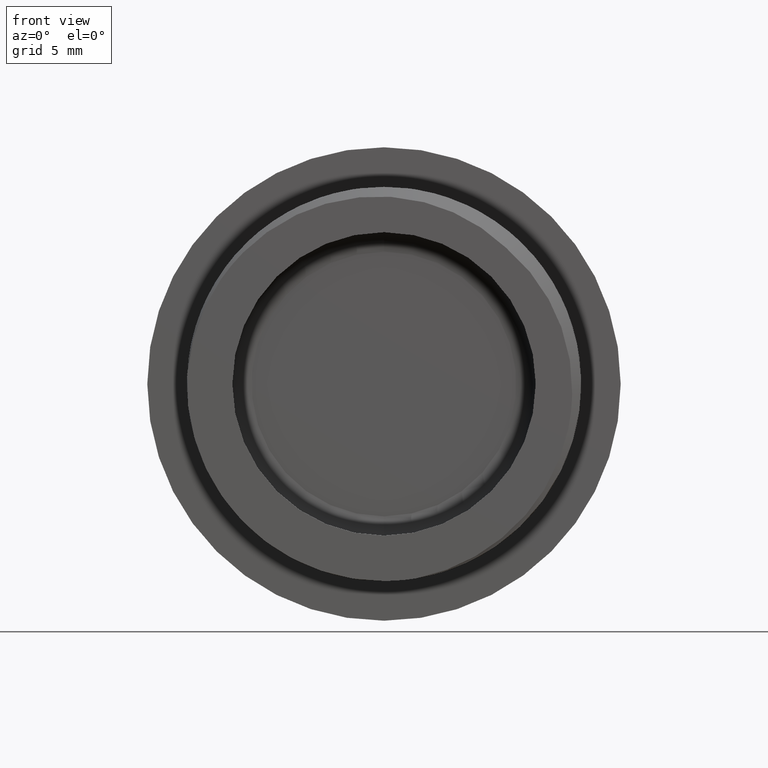
[diagram: clean part render]
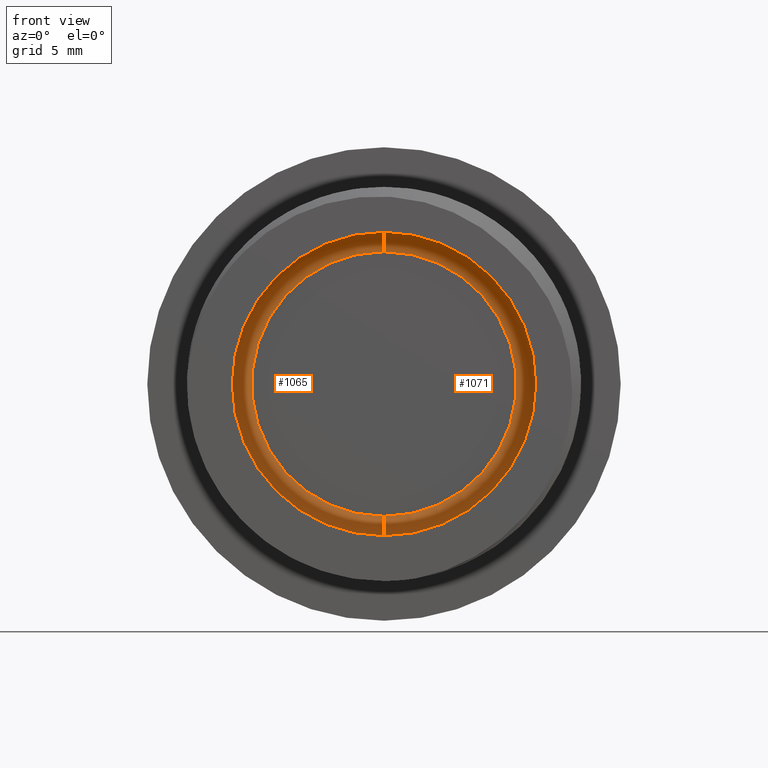
[diagram: same view with one multi-face feature highlighted, each face labeled with its STEP entity id]
A machine part, front view. The highlighted faces form ONE feature: a constant-radius fillet chain: 2 tangent blend faces with common blend radius 1 mm. The faces share edges in the B-rep.
Their STEP definitions:
[1] entity #1065 (Torus):
#415 = VERTEX_POINT ( 'NONE', #482 ) ;
#422 = VERTEX_POINT ( 'NONE', #476 ) ;
#425 = VERTEX_POINT ( 'NONE', #501 ) ;
#448 = VERTEX_POINT ( 'NONE', #508 ) ;
#476 = CARTESIAN_POINT ( 'NONE',  ( 4.806738686653360700E-016, 8.357954256561420400, -7.849999999999999600 ) ) ;
#482 = CARTESIAN_POINT ( 'NONE',  ( 4.806738686653360700E-016, 9.357954256561425800, -6.849999999999993400 ) ) ;
#501 = CARTESIAN_POINT ( 'NONE',  ( 1.380789266038640300E-015, 9.357954256561425800, 6.849999999999993400 ) ) ;
#508 = CARTESIAN_POINT ( 'NONE',  ( 1.442021605996008100E-015, 8.357954256561420400, 7.849999999999999600 ) ) ;
#539 = CARTESIAN_POINT ( 'NONE',  ( 1.319556926081273500E-015, 8.357954256561429300, 6.850000000000004100 ) ) ;
#540 = DIRECTION ( 'NONE',  ( 1.000000000000000000, 0.0000000000000000000, -1.224646799147353200E-016 ) ) ;
#541 = DIRECTION ( 'NONE',  ( -1.224646799147354700E-016, 0.0000000000000000000, -1.000000000000000000 ) ) ;
#542 = DIRECTION ( 'NONE',  ( 0.0000000000000000000, 0.0000000000000000000, -1.000000000000000000 ) ) ;
#544 = DIRECTION ( 'NONE',  ( 0.0000000000000000000, 0.0000000000000000000, -1.000000000000000000 ) ) ;
#548 = DIRECTION ( 'NONE',  ( 0.0000000000000000000, -1.000000000000000000, 0.0000000000000000000 ) ) ;
#550 = CARTESIAN_POINT ( 'NONE',  ( 4.806738686653360700E-016, 9.357954256561425800, 0.0000000000000000000 ) ) ;
#552 = CARTESIAN_POINT ( 'NONE',  ( 0.0000000000000000000, 8.357954256561420400, 0.0000000000000000000 ) ) ;
#553 = DIRECTION ( 'NONE',  ( -0.0000000000000000000, -1.000000000000000000, -0.0000000000000000000 ) ) ;
#558 = DIRECTION ( 'NONE',  ( -1.000000000000000000, -0.0000000000000000000, -0.0000000000000000000 ) ) ;
#567 = CARTESIAN_POINT ( 'NONE',  ( 4.806738686653360700E-016, 8.357954256561429300, -6.850000000000004100 ) ) ;
#568 = DIRECTION ( 'NONE',  ( 0.0000000000000000000, 0.0000000000000000000, 1.000000000000000000 ) ) ;
#699 = ORIENTED_EDGE ( 'NONE', *, *, #932, .F. ) ;
#700 = ORIENTED_EDGE ( 'NONE', *, *, #933, .T. ) ;
#701 = ORIENTED_EDGE ( 'NONE', *, *, #934, .F. ) ;
#702 = ORIENTED_EDGE ( 'NONE', *, *, #929, .T. ) ;
#907 = EDGE_LOOP ( 'NONE', ( #699, #700, #702, #701 ) ) ;
#929 = EDGE_CURVE ( 'NONE', #448, #422, #2159, .T. ) ;
#932 = EDGE_CURVE ( 'NONE', #425, #415, #2175, .T. ) ;
#933 = EDGE_CURVE ( 'NONE', #425, #448, #2179, .T. ) ;
#934 = EDGE_CURVE ( 'NONE', #415, #422, #2170, .T. ) ;
#1065 = ADVANCED_FACE ( 'NONE', ( #1419 ), #2254, .F. ) ;
#1401 = DIRECTION ( 'NONE',  ( 0.0000000000000000000, -1.000000000000000000, 0.0000000000000000000 ) ) ;
#1413 = CARTESIAN_POINT ( 'NONE',  ( 4.806738686653360700E-016, 8.357954256561429300, 0.0000000000000000000 ) ) ;
#1419 = FACE_OUTER_BOUND ( 'NONE', #907, .T. ) ;
#1420 = DIRECTION ( 'NONE',  ( 0.0000000000000000000, 0.0000000000000000000, -1.000000000000000000 ) ) ;
#2158 = AXIS2_PLACEMENT_3D ( 'NONE', #539, #540, #541 ) ;
#2159 = CIRCLE ( 'NONE', #2174, 7.849999999999999600 ) ;
#2162 = AXIS2_PLACEMENT_3D ( 'NONE', #567, #558, #568 ) ;
#2170 = CIRCLE ( 'NONE', #2162, 0.9999999999999965600 ) ;
#2174 = AXIS2_PLACEMENT_3D ( 'NONE', #552, #553, #542 ) ;
#2175 = CIRCLE ( 'NONE', #2177, 6.849999999999993400 ) ;
#2177 = AXIS2_PLACEMENT_3D ( 'NONE', #550, #548, #544 ) ;
#2179 = CIRCLE ( 'NONE', #2158, 0.9999999999999965600 ) ;
#2254 = TOROIDAL_SURFACE ( 'NONE', #2298, 6.850000000000004100, 0.9999999999999970000 ) ;
#2298 = AXIS2_PLACEMENT_3D ( 'NONE', #1413, #1401, #1420 ) ;
[2] entity #1071 (Torus):
#130 = FACE_OUTER_BOUND ( 'NONE', #397, .T. ) ;
#136 = CARTESIAN_POINT ( 'NONE',  ( 4.806738686653360700E-016, 8.357954256561429300, 0.0000000000000000000 ) ) ;
#139 = DIRECTION ( 'NONE',  ( 0.0000000000000000000, -1.000000000000000000, 0.0000000000000000000 ) ) ;
#142 = DIRECTION ( 'NONE',  ( 0.0000000000000000000, 0.0000000000000000000, -1.000000000000000000 ) ) ;
#397 = EDGE_LOOP ( 'NONE', ( #884, #905, #881, #895 ) ) ;
#415 = VERTEX_POINT ( 'NONE', #482 ) ;
#422 = VERTEX_POINT ( 'NONE', #476 ) ;
#425 = VERTEX_POINT ( 'NONE', #501 ) ;
#448 = VERTEX_POINT ( 'NONE', #508 ) ;
#476 = CARTESIAN_POINT ( 'NONE',  ( 4.806738686653360700E-016, 8.357954256561420400, -7.849999999999999600 ) ) ;
#482 = CARTESIAN_POINT ( 'NONE',  ( 4.806738686653360700E-016, 9.357954256561425800, -6.849999999999993400 ) ) ;
#501 = CARTESIAN_POINT ( 'NONE',  ( 1.380789266038640300E-015, 9.357954256561425800, 6.849999999999993400 ) ) ;
#508 = CARTESIAN_POINT ( 'NONE',  ( 1.442021605996008100E-015, 8.357954256561420400, 7.849999999999999600 ) ) ;
#539 = CARTESIAN_POINT ( 'NONE',  ( 1.319556926081273500E-015, 8.357954256561429300, 6.850000000000004100 ) ) ;
#540 = DIRECTION ( 'NONE',  ( 1.000000000000000000, 0.0000000000000000000, -1.224646799147353200E-016 ) ) ;
#541 = DIRECTION ( 'NONE',  ( -1.224646799147354700E-016, 0.0000000000000000000, -1.000000000000000000 ) ) ;
#558 = DIRECTION ( 'NONE',  ( -1.000000000000000000, -0.0000000000000000000, -0.0000000000000000000 ) ) ;
#567 = CARTESIAN_POINT ( 'NONE',  ( 4.806738686653360700E-016, 8.357954256561429300, -6.850000000000004100 ) ) ;
#568 = DIRECTION ( 'NONE',  ( 0.0000000000000000000, 0.0000000000000000000, 1.000000000000000000 ) ) ;
#881 = ORIENTED_EDGE ( 'NONE', *, *, #934, .T. ) ;
#884 = ORIENTED_EDGE ( 'NONE', *, *, #933, .F. ) ;
#895 = ORIENTED_EDGE ( 'NONE', *, *, #1023, .T. ) ;
#905 = ORIENTED_EDGE ( 'NONE', *, *, #1026, .F. ) ;
#933 = EDGE_CURVE ( 'NONE', #425, #448, #2179, .T. ) ;
#934 = EDGE_CURVE ( 'NONE', #415, #422, #2170, .T. ) ;
#1023 = EDGE_CURVE ( 'NONE', #422, #448, #2224, .T. ) ;
#1026 = EDGE_CURVE ( 'NONE', #415, #425, #2230, .T. ) ;
#1071 = ADVANCED_FACE ( 'NONE', ( #130 ), #2287, .F. ) ;
#2158 = AXIS2_PLACEMENT_3D ( 'NONE', #539, #540, #541 ) ;
#2162 = AXIS2_PLACEMENT_3D ( 'NONE', #567, #558, #568 ) ;
#2170 = CIRCLE ( 'NONE', #2162, 0.9999999999999965600 ) ;
#2179 = CIRCLE ( 'NONE', #2158, 0.9999999999999965600 ) ;
#2224 = CIRCLE ( 'NONE', #2262, 7.849999999999999600 ) ;
#2230 = CIRCLE ( 'NONE', #2236, 6.849999999999993400 ) ;
#2236 = AXIS2_PLACEMENT_3D ( 'NONE', #2774, #2775, #2776 ) ;
#2262 = AXIS2_PLACEMENT_3D ( 'NONE', #2770, #2765, #2764 ) ;
#2287 = TOROIDAL_SURFACE ( 'NONE', #2291, 6.850000000000004100, 0.9999999999999970000 ) ;
#2291 = AXIS2_PLACEMENT_3D ( 'NONE', #136, #139, #142 ) ;
#2764 = DIRECTION ( 'NONE',  ( 0.0000000000000000000, 0.0000000000000000000, -1.000000000000000000 ) ) ;
#2765 = DIRECTION ( 'NONE',  ( -0.0000000000000000000, -1.000000000000000000, -0.0000000000000000000 ) ) ;
#2770 = CARTESIAN_POINT ( 'NONE',  ( 0.0000000000000000000, 8.357954256561420400, 0.0000000000000000000 ) ) ;
#2774 = CARTESIAN_POINT ( 'NONE',  ( 4.806738686653360700E-016, 9.357954256561425800, 0.0000000000000000000 ) ) ;
#2775 = DIRECTION ( 'NONE',  ( 0.0000000000000000000, -1.000000000000000000, 0.0000000000000000000 ) ) ;
#2776 = DIRECTION ( 'NONE',  ( 0.0000000000000000000, 0.0000000000000000000, -1.000000000000000000 ) ) ;